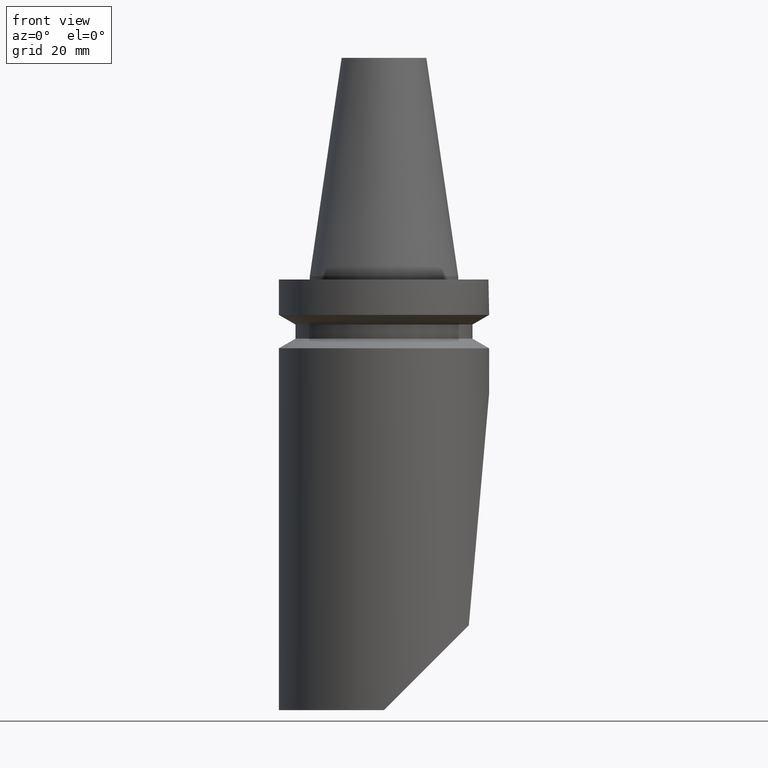
[diagram: clean part render]
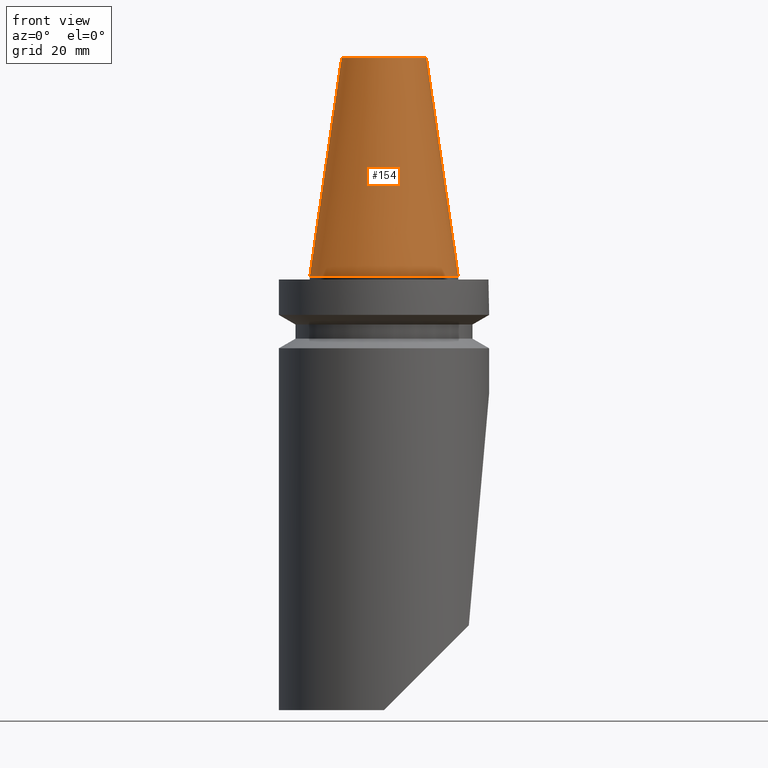
[diagram: same view with one face highlighted and labeled with its STEP entity id]
A machine part, front view. The second image highlights one B-rep face of the part: STEP entity #154.
In plain terms, the highlighted conical surface has half-angle 8.297 deg.
Its self-contained STEP definition (entity closure, byte-faithful):
#111=EDGE_CURVE('240[2]',#288,#288,#289,.T.);
#154=ADVANCED_FACE('240[2]',(#344,#345),#346,.T.);
#156=EDGE_CURVE('240[2]',#348,#348,#349,.T.);
#288=VERTEX_POINT('',#516);
#289=CIRCLE('',#517,22.225);
#344=FACE_BOUND('',#597,.T.);
#345=FACE_BOUND('',#598,.T.);
#346=CONICAL_SURFACE('',#599,17.4562500022463,0.144812498171676);
#348=VERTEX_POINT('',#602);
#349=CIRCLE('',#603,12.6875000044926);
#516=CARTESIAN_POINT('',(-22.225,-4.08266626665749E-015,2.72177751110499E-015));
#517=AXIS2_PLACEMENT_3D('',#792,#793,#794);
#597=EDGE_LOOP('',(#867));
#598=EDGE_LOOP('',(#868));
#599=AXIS2_PLACEMENT_3D('',#869,#870,#871);
#602=CARTESIAN_POINT('',(-12.6875000044926,1.67393909275927E-015,65.4));
#603=AXIS2_PLACEMENT_3D('',#872,#873,#874);
#792=CARTESIAN_POINT('',(0.0,0.0,0.0));
#793=DIRECTION('',(0.0,0.0,1.0));
#794=DIRECTION('',(-1.0,0.0,0.0));
#867=ORIENTED_EDGE('',*,*,#111,.T.);
#868=ORIENTED_EDGE('',*,*,#156,.F.);
#869=CARTESIAN_POINT('',(4.00459503321184E-015,2.00229751660592E-015,32.7));
#870=DIRECTION('',(-0.0,-0.0,-1.0));
#871=DIRECTION('',(-1.0,0.0,0.0));
#872=CARTESIAN_POINT('',(8.00919006642369E-015,4.00459503321185E-015,65.4));
#873=DIRECTION('',(0.0,0.0,1.0));
#874=DIRECTION('',(-1.0,0.0,0.0));